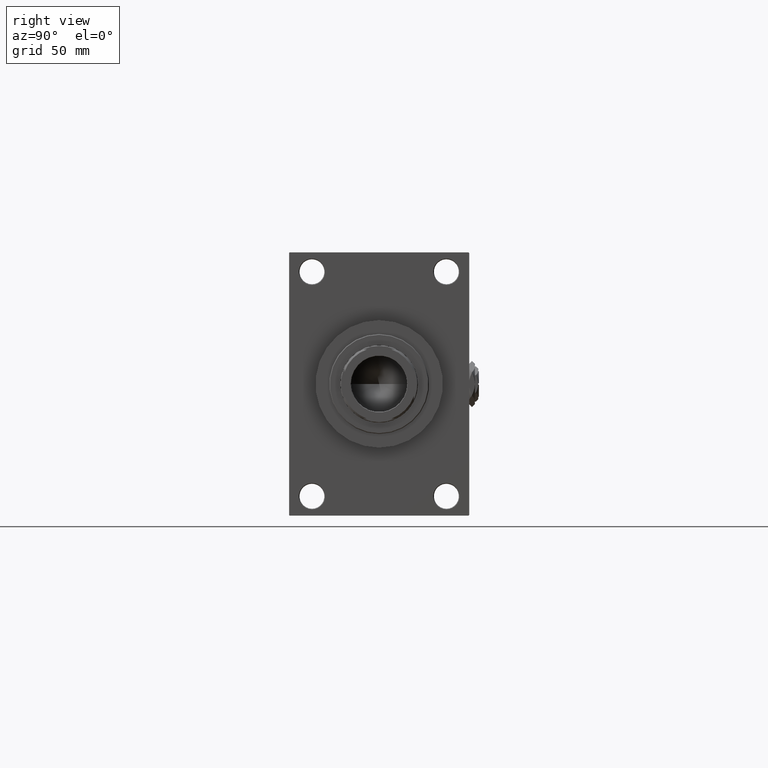
[diagram: clean part render]
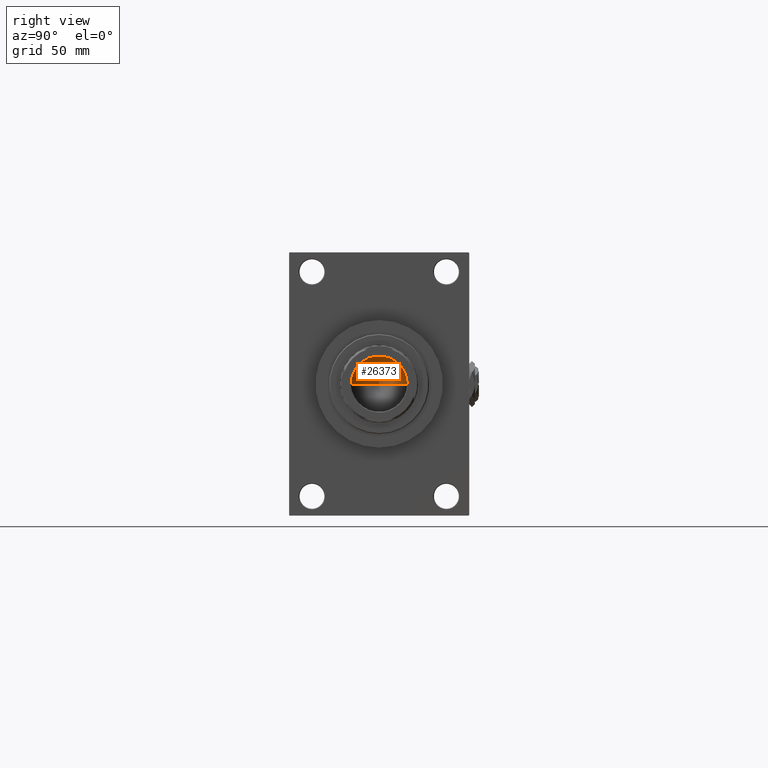
[diagram: same view with one face highlighted and labeled with its STEP entity id]
A machine part, right view. The second image highlights one B-rep face of the part: STEP entity #26373.
In plain terms, the highlighted conical surface has half-angle 59 deg.
Its self-contained STEP definition (entity closure, byte-faithful):
#756 = LINE ( 'NONE', #8075, #41225 ) ;
#3068 = ORIENTED_EDGE ( 'NONE', *, *, #24128, .T. ) ;
#3297 = CARTESIAN_POINT ( 'NONE',  ( 0.000000000000000000, 0.000000000000000000, 347.0000000000000568 ) ) ;
#3901 = DIRECTION ( 'NONE',  ( 1.000000000000000000, 0.000000000000000000, 0.000000000000000000 ) ) ;
#7184 = CARTESIAN_POINT ( 'NONE',  ( -20.24999999999998934, 2.479909768273389117E-15, 347.0000000000000568 ) ) ;
#8075 = CARTESIAN_POINT ( 'NONE',  ( 20.24999999999998934, 0.000000000000000000, 347.0000000000000568 ) ) ;
#10668 = CARTESIAN_POINT ( 'NONE',  ( 20.24999999999998934, 0.000000000000000000, 347.0000000000000568 ) ) ;
#11342 = CARTESIAN_POINT ( 'NONE',  ( -20.24999999999998934, 2.479909768273389117E-15, 347.0000000000000568 ) ) ;
#11365 = DIRECTION ( 'NONE',  ( 0.8571673007021112234, 0.000000000000000000, 0.5150380749100560429 ) ) ;
#11451 = LINE ( 'NONE', #7184, #26963 ) ;
#14336 = AXIS2_PLACEMENT_3D ( 'NONE', #45528, #22084, #3901 ) ;
#15413 = EDGE_CURVE ( 'NONE', #29238, #40917, #756, .T. ) ;
#21395 = CONICAL_SURFACE ( 'NONE', #38278, 20.24999999999998934, 1.029744258676652313 ) ;
#22084 = DIRECTION ( 'NONE',  ( -0.000000000000000000, -0.000000000000000000, 1.000000000000000000 ) ) ;
#23452 = FACE_OUTER_BOUND ( 'NONE', #38342, .T. ) ;
#24128 = EDGE_CURVE ( 'NONE', #29238, #38592, #11451, .T. ) ;
#26242 = DIRECTION ( 'NONE',  ( 1.000000000000000000, 0.000000000000000000, 0.000000000000000000 ) ) ;
#26373 = ADVANCED_FACE ( 'NONE', ( #23452 ), #21395, .F. ) ;
#26963 = VECTOR ( 'NONE', #30839, 1000.000000000000000 ) ;
#27128 = ORIENTED_EDGE ( 'NONE', *, *, #31635, .T. ) ;
#29238 = VERTEX_POINT ( 'NONE', #49069 ) ;
#30839 = DIRECTION ( 'NONE',  ( -0.8571673007021112234, 1.049727191138617340E-16, 0.5150380749100560429 ) ) ;
#31635 = EDGE_CURVE ( 'NONE', #38592, #40917, #34417, .T. ) ;
#34417 = CIRCLE ( 'NONE', #14336, 20.24999999999998934 ) ;
#38278 = AXIS2_PLACEMENT_3D ( 'NONE', #3297, #38812, #26242 ) ;
#38342 = EDGE_LOOP ( 'NONE', ( #47030, #3068, #27128 ) ) ;
#38592 = VERTEX_POINT ( 'NONE', #11342 ) ;
#38812 = DIRECTION ( 'NONE',  ( -0.000000000000000000, -0.000000000000000000, 1.000000000000000000 ) ) ;
#40917 = VERTEX_POINT ( 'NONE', #10668 ) ;
#41225 = VECTOR ( 'NONE', #11365, 1000.000000000000000 ) ;
#45528 = CARTESIAN_POINT ( 'NONE',  ( 0.000000000000000000, 0.000000000000000000, 347.0000000000000568 ) ) ;
#47030 = ORIENTED_EDGE ( 'NONE', *, *, #15413, .F. ) ;
#49069 = CARTESIAN_POINT ( 'NONE',  ( -1.584115414415908206E-14, 0.000000000000000000, 334.8325724646919070 ) ) ;